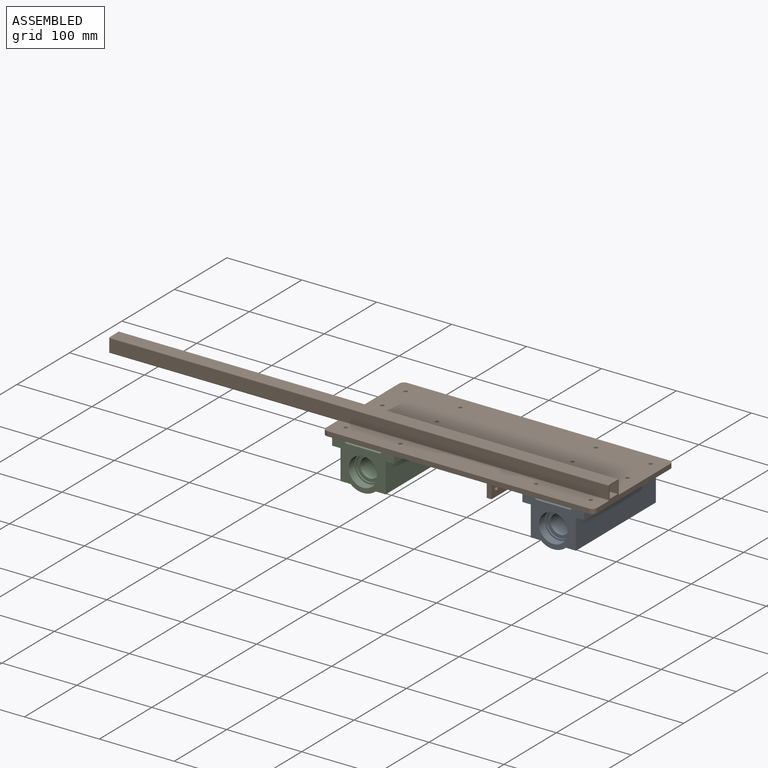
[diagram: assembled view]
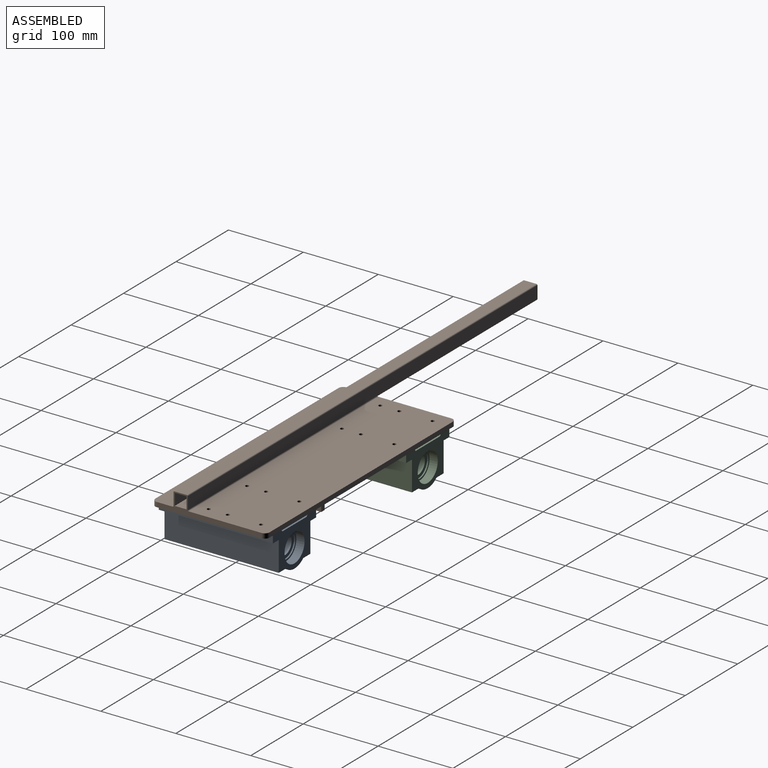
[diagram: assembled view, second angle]
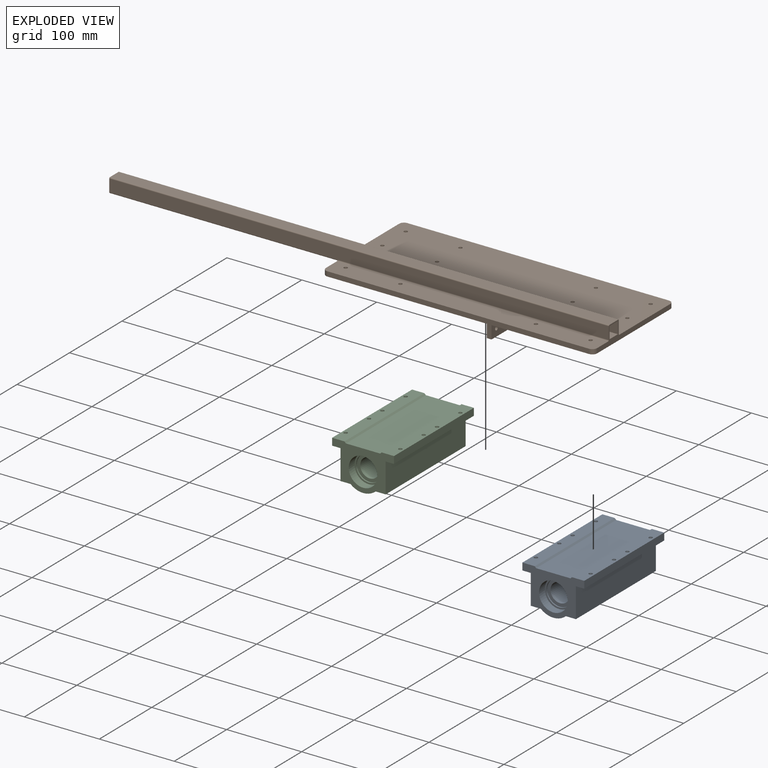
[diagram: exploded view]
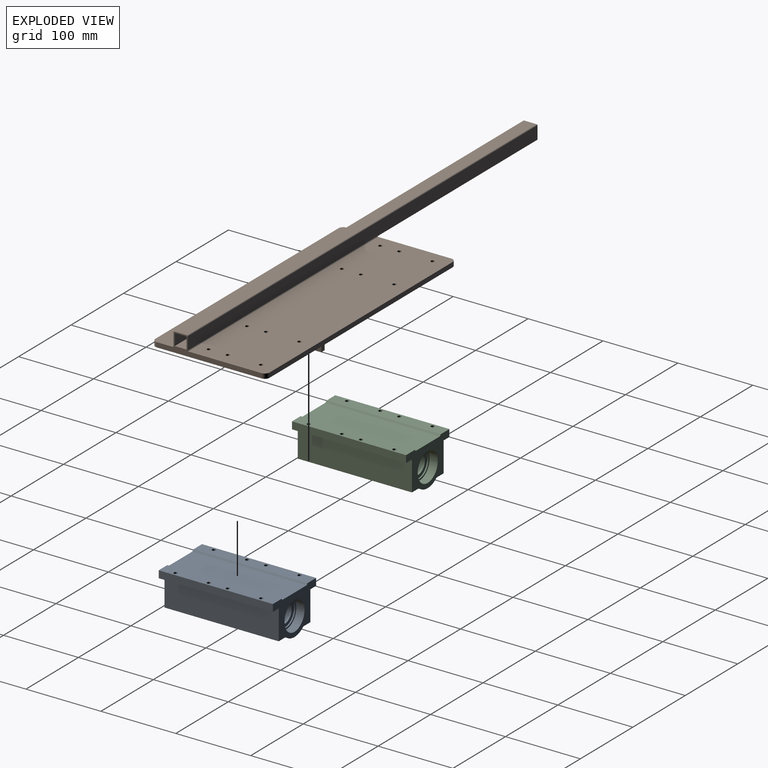
[diagram: exploded view, second angle]
ASSEMBLY  parts=3 mates=2
PART A: 41 faces, bbox 82.6x152.4x55.6 mm
  f0: plane 33.95x33.95mm, normal (0,-1,0), area 398.8mm2, adj f2,f39
  f1: plane 33.95x33.95mm, normal (0,1,0), area 398.8mm2, adj f2,f37
  f2: cylinder r=12.7mm len=57.15mm, axis (0,-1,0), area 4560.4mm2, adj f0,f1
  f3: cylinder r=16.98mm len=33.95mm, axis (0,-1,0), area 184.2mm2, adj f4,f34
  f4: plane 38.2x38.2mm, normal (0,-1,0), area 240.5mm2, adj f3,f12
  f5: cylinder r=16.98mm len=33.95mm, axis (0,-1,0), area 184.2mm2, adj f6,f35
  f6: plane 38.2x38.2mm, normal (0,1,0), area 240.5mm2, adj f5,f29
  f7: cylinder r=19.1mm len=38.2mm, axis (0,1,0), area 1316.8mm2, adj f13,f40
  f8: cylinder r=2.38mm len=9.53mm, axis (0,0,1), area 142.5mm2, adj f16,f18
  f9: cylinder r=2.38mm len=9.53mm, axis (0,0,1), area 142.5mm2, adj f16,f18
  f10: cylinder r=2.38mm len=9.53mm, axis (0,0,1), area 142.5mm2, adj f22,f24
  f11: cylinder r=2.38mm len=9.53mm, axis (0,0,1), area 142.5mm2, adj f22,f24
  f12: cylinder r=19.1mm len=38.2mm, axis (0,1,0), area 1109.5mm2, adj f4,f38
  f13: plane 82.55x55.56mm, normal (0,-1,0), area 2089.9mm2, adj f7,f15,f16,f17,f18,f19,f20,f21
  f14: plane 82.55x55.56mm, normal (0,1,0), area 2089.9mm2, adj f15,f16,f17,f18,f19,f20,f21,f22
  f15: plane 152.4x39.69mm, normal (1,0,0), area 6048.4mm2, adj f13,f14,f16,f28
  f16: plane 152.4x11.11mm, normal (0,0,-1), area 1622.3mm2, adj f8,f9,f13,f14,f15,f17,f31,f32
  f17: plane 152.4x9.53mm, normal (1,0,0), area 1451.6mm2, adj f13,f14,f16,f18
  f18: plane 152.4x16.51mm, normal (0,0,1), area 2444.9mm2, adj f8,f9,f13,f14,f17,f19,f31,f32
  f19: plane 152.4x1.91mm, normal (-0.71,0,0.71), area 410.6mm2, adj f13,f14,f18,f20
  f20: plane 152.4x45.72mm, normal (0,0,1), area 6967.7mm2, adj f13,f14,f19,f21
  f21: plane 152.4x1.91mm, normal (0.71,0,0.71), area 410.6mm2, adj f13,f14,f20,f22
  f22: plane 152.4x16.51mm, normal (0,0,1), area 2444.9mm2, adj f10,f11,f13,f14,f21,f23,f30,f33
  f23: plane 152.4x9.53mm, normal (-1,0,0), area 1451.6mm2, adj f13,f14,f22,f24
  f24: plane 152.4x11.11mm, normal (0,0,-1), area 1622.3mm2, adj f10,f11,f13,f14,f23,f25,f30,f33
  f25: plane 152.4x39.69mm, normal (-1,0,0), area 6048.4mm2, adj f13,f14,f24,f26
  f26: plane 152.4x13.36mm, normal (0,0,-1), area 2036.4mm2, adj f13,f14,f25,f27
  f27: cylinder r=25.4mm len=152.4mm, axis (0,1,0), area 5595.4mm2, adj f13,f14,f26,f28
  f28: plane 152.4x13.36mm, normal (0,0,-1), area 2036.4mm2, adj f13,f14,f15,f27
  f29: cylinder r=19.1mm len=38.2mm, axis (0,1,0), area 1316.8mm2, adj f6,f14
  f30: cylinder r=2.38mm len=9.53mm, axis (0,0,1), area 142.5mm2, adj f22,f24
  f31: cylinder r=2.38mm len=9.53mm, axis (0,0,1), area 142.5mm2, adj f16,f18
  f32: cylinder r=2.38mm len=9.53mm, axis (0,0,1), area 142.5mm2, adj f16,f18
  f33: cylinder r=2.38mm len=9.53mm, axis (0,0,1), area 142.5mm2, adj f22,f24
  f34: plane 33.95x33.95mm, normal (0,-1,0), area 398.8mm2, adj f3,f36
  f35: plane 33.95x33.95mm, normal (0,1,0), area 398.8mm2, adj f5,f36
  f36: cylinder r=12.7mm len=57.15mm, axis (0,1,0), area 4560.4mm2, adj f34,f35
  f37: cylinder r=16.98mm len=33.95mm, axis (0,1,0), area 184.2mm2, adj f1,f38
  f38: plane 38.2x38.2mm, normal (0,1,0), area 240.5mm2, adj f12,f37
  f39: cylinder r=16.98mm len=33.95mm, axis (0,1,0), area 184.2mm2, adj f0,f40
  f40: plane 38.2x38.2mm, normal (0,-1,0), area 240.5mm2, adj f7,f39
PART B: 50 faces, bbox 666.8x152.4x67.3 mm
  f0: plane 139.7x7.62mm, normal (-1,0,0), area 888.5mm2, adj f1,f2,f3,f5,f6,f37,f38,f46
  f1: plane 361.95x103.51mm, normal (0,0,1), area 37232.6mm2, adj f0,f4,f5,f9,f10,f11,f12,f13
  f2: plane 361.95x27.31mm, normal (0,0,1), area 9794.5mm2, adj f0,f6,f7,f8,f9,f16,f17,f21
  f3: plane 361.95x152.4mm, normal (0,0,-1), area 54422.2mm2, adj f0,f4,f5,f6,f7,f8,f9,f10
  f4: plane 349.25x6.35mm, normal (0,1,0), area 2217.7mm2, adj f1,f3,f5,f25
  f5: cylinder r=6.35mm len=6.35mm, axis (0,0,-1), area 63.3mm2, adj f0,f1,f3,f4
  f6: cylinder r=6.35mm len=6.35mm, axis (0,0,-1), area 63.3mm2, adj f0,f2,f3,f7
  f7: plane 349.25x6.35mm, normal (0,-1,0), area 2217.7mm2, adj f2,f3,f6,f8
  f8: cylinder r=6.35mm len=6.35mm, axis (0,0,-1), area 63.3mm2, adj f2,f3,f7,f9
  f9: plane 139.7x25.4mm, normal (1,0,0), area 1002mm2, adj f1,f2,f3,f8,f25,f35,f36,f37
  f10: cylinder r=2.38mm len=6.35mm, axis (0,0,-1), area 95mm2, adj f1,f3
  f11: cylinder r=2.38mm len=6.35mm, axis (0,0,-1), area 95mm2, adj f1,f3
  f12: cylinder r=2.38mm len=6.35mm, axis (0,0,-1), area 95mm2, adj f1,f3
  f13: cylinder r=2.38mm len=6.35mm, axis (0,0,-1), area 95mm2, adj f1,f3
  f14: cylinder r=2.38mm len=6.35mm, axis (0,0,-1), area 95mm2, adj f1,f3
  f15: cylinder r=2.38mm len=6.35mm, axis (0,0,-1), area 95mm2, adj f1,f3
  f16: cylinder r=2.38mm len=6.35mm, axis (0,0,-1), area 95mm2, adj f2,f3
  f17: cylinder r=2.38mm len=6.35mm, axis (0,0,-1), area 95mm2, adj f2,f3
  f18: cylinder r=2.38mm len=6.35mm, axis (0,0,-1), area 95mm2, adj f1,f3
  f19: cylinder r=2.38mm len=6.35mm, axis (0,0,-1), area 95mm2, adj f1,f3
  f20: cylinder r=2.38mm len=6.35mm, axis (0,0,-1), area 95mm2, adj f1,f3
  f21: cylinder r=2.38mm len=6.35mm, axis (0,0,-1), area 95mm2, adj f2,f3
  f22: cylinder r=2.38mm len=6.35mm, axis (0,0,-1), area 95mm2, adj f1,f3
  f23: cylinder r=2.38mm len=6.35mm, axis (0,0,-1), area 95mm2, adj f1,f3
  f24: cylinder r=2.38mm len=6.35mm, axis (0,0,-1), area 95mm2, adj f1,f3
  f25: cylinder r=6.35mm len=6.35mm, axis (0,0,-1), area 63.3mm2, adj f1,f3,f4,f9
  f26: cylinder r=2.38mm len=6.35mm, axis (0,0,-1), area 95mm2, adj f2,f3
  f27: plane 41.91x6.35mm, normal (0,1,0), area 266.1mm2, adj f3,f28,f30,f31
  f28: plane 66.04x41.91mm, normal (-1,0,0), area 2675.3mm2, adj f3,f27,f29,f31,f32,f33,f34
  f29: plane 41.91x6.35mm, normal (0,-1,0), area 266.1mm2, adj f3,f28,f30,f31
  f30: plane 66.04x41.91mm, normal (1,0,0), area 2675.3mm2, adj f3,f27,f29,f31,f32,f33,f34
  f31: plane 66.04x6.35mm, normal (0,0,-1), area 419.4mm2, adj f27,f28,f29,f30
  f32: cylinder r=4.06mm len=8.13mm, axis (1,0,0), area 162.1mm2, adj f28,f30
  f33: cylinder r=2.54mm len=6.35mm, axis (1,0,0), area 101.3mm2, adj f28,f30
  f34: cylinder r=2.54mm len=6.35mm, axis (1,0,0), area 101.3mm2, adj f28,f30
  f35: cylinder r=1.27mm len=666.75mm, axis (-1,0,0), area 1330.1mm2, adj f9,f36,f45,f49
  f36: plane 666.75x16.51mm, normal (0,1,0), area 11008mm2, adj f9,f35,f37,f46,f49
  f37: cylinder r=1.27mm len=361.95mm, axis (-1,0,0), area 722.1mm2, adj f0,f1,f9,f36
  f38: cylinder r=1.27mm len=361.95mm, axis (-1,0,0), area 722.1mm2, adj f0,f2,f9,f39
  f39: plane 666.75x16.51mm, normal (0,-1,0), area 11008mm2, adj f9,f38,f40,f48,f49
  f40: cylinder r=1.27mm len=666.75mm, axis (-1,0,0), area 1330.1mm2, adj f9,f39,f45,f49
  f41: plane 666.75x15.75mm, normal (0,-1,0), area 10500mm2, adj f9,f42,f44,f49
  f42: plane 666.75x15.75mm, normal (0,0,-1), area 10500mm2, adj f9,f41,f43,f49
  f43: plane 666.75x15.75mm, normal (0,1,0), area 10500mm2, adj f9,f42,f44,f49
  f44: plane 666.75x15.75mm, normal (0,0,1), area 10500mm2, adj f9,f41,f43,f49
  f45: plane 666.75x16.51mm, normal (0,0,1), area 11008mm2, adj f9,f35,f40,f49
  f46: cylinder r=1.27mm len=304.8mm, axis (1,0,0), area 608mm2, adj f0,f36,f47,f49
  f47: plane 304.8x16.51mm, normal (0,0,-1), area 5032.2mm2, adj f0,f46,f48,f49
  f48: cylinder r=1.27mm len=304.8mm, axis (1,0,0), area 608mm2, adj f0,f39,f47,f49
  f49: plane 19.05x19.05mm, normal (-1,0,0), area 113.5mm2, adj f35,f36,f39,f40,f41,f42,f43,f44
PART C: 41 faces, bbox 82.6x152.4x55.6 mm
  f0: plane 33.95x33.95mm, normal (0,-1,0), area 398.8mm2, adj f2,f39
  f1: plane 33.95x33.95mm, normal (0,1,0), area 398.8mm2, adj f2,f37
  f2: cylinder r=12.7mm len=57.15mm, axis (0,-1,0), area 4560.4mm2, adj f0,f1
  f3: cylinder r=16.98mm len=33.95mm, axis (0,-1,0), area 184.2mm2, adj f4,f34
  f4: plane 38.2x38.2mm, normal (0,-1,0), area 240.5mm2, adj f3,f12
  f5: cylinder r=16.98mm len=33.95mm, axis (0,-1,0), area 184.2mm2, adj f6,f35
  f6: plane 38.2x38.2mm, normal (0,1,0), area 240.5mm2, adj f5,f29
  f7: cylinder r=19.1mm len=38.2mm, axis (0,1,0), area 1316.8mm2, adj f13,f40
  f8: cylinder r=2.38mm len=9.53mm, axis (0,0,1), area 142.5mm2, adj f16,f18
  f9: cylinder r=2.38mm len=9.53mm, axis (0,0,1), area 142.5mm2, adj f16,f18
  f10: cylinder r=2.38mm len=9.53mm, axis (0,0,1), area 142.5mm2, adj f22,f24
  f11: cylinder r=2.38mm len=9.53mm, axis (0,0,1), area 142.5mm2, adj f22,f24
  f12: cylinder r=19.1mm len=38.2mm, axis (0,1,0), area 1109.5mm2, adj f4,f38
  f13: plane 82.55x55.56mm, normal (0,-1,0), area 2089.9mm2, adj f7,f15,f16,f17,f18,f19,f20,f21
  f14: plane 82.55x55.56mm, normal (0,1,0), area 2089.9mm2, adj f15,f16,f17,f18,f19,f20,f21,f22
  f15: plane 152.4x39.69mm, normal (1,0,0), area 6048.4mm2, adj f13,f14,f16,f28
  f16: plane 152.4x11.11mm, normal (0,0,-1), area 1622.3mm2, adj f8,f9,f13,f14,f15,f17,f31,f32
  f17: plane 152.4x9.53mm, normal (1,0,0), area 1451.6mm2, adj f13,f14,f16,f18
  f18: plane 152.4x16.51mm, normal (0,0,1), area 2444.9mm2, adj f8,f9,f13,f14,f17,f19,f31,f32
  f19: plane 152.4x1.91mm, normal (-0.71,0,0.71), area 410.6mm2, adj f13,f14,f18,f20
  f20: plane 152.4x45.72mm, normal (0,0,1), area 6967.7mm2, adj f13,f14,f19,f21
  f21: plane 152.4x1.91mm, normal (0.71,0,0.71), area 410.6mm2, adj f13,f14,f20,f22
  f22: plane 152.4x16.51mm, normal (0,0,1), area 2444.9mm2, adj f10,f11,f13,f14,f21,f23,f30,f33
  f23: plane 152.4x9.53mm, normal (-1,0,0), area 1451.6mm2, adj f13,f14,f22,f24
  f24: plane 152.4x11.11mm, normal (0,0,-1), area 1622.3mm2, adj f10,f11,f13,f14,f23,f25,f30,f33
  f25: plane 152.4x39.69mm, normal (-1,0,0), area 6048.4mm2, adj f13,f14,f24,f26
  f26: plane 152.4x13.36mm, normal (0,0,-1), area 2036.4mm2, adj f13,f14,f25,f27
  f27: cylinder r=25.4mm len=152.4mm, axis (0,1,0), area 5595.4mm2, adj f13,f14,f26,f28
  f28: plane 152.4x13.36mm, normal (0,0,-1), area 2036.4mm2, adj f13,f14,f15,f27
  f29: cylinder r=19.1mm len=38.2mm, axis (0,1,0), area 1316.8mm2, adj f6,f14
  f30: cylinder r=2.38mm len=9.53mm, axis (0,0,1), area 142.5mm2, adj f22,f24
  f31: cylinder r=2.38mm len=9.53mm, axis (0,0,1), area 142.5mm2, adj f16,f18
  f32: cylinder r=2.38mm len=9.53mm, axis (0,0,1), area 142.5mm2, adj f16,f18
  f33: cylinder r=2.38mm len=9.53mm, axis (0,0,1), area 142.5mm2, adj f22,f24
  f34: plane 33.95x33.95mm, normal (0,-1,0), area 398.8mm2, adj f3,f36
  f35: plane 33.95x33.95mm, normal (0,1,0), area 398.8mm2, adj f5,f36
  f36: cylinder r=12.7mm len=57.15mm, axis (0,1,0), area 4560.4mm2, adj f34,f35
  f37: cylinder r=16.98mm len=33.95mm, axis (0,1,0), area 184.2mm2, adj f1,f38
  f38: plane 38.2x38.2mm, normal (0,1,0), area 240.5mm2, adj f12,f37
  f39: cylinder r=16.98mm len=33.95mm, axis (0,1,0), area 184.2mm2, adj f0,f40
  f40: plane 38.2x38.2mm, normal (0,-1,0), area 240.5mm2, adj f7,f39
PLACE A t=(-114.6,-0.14,21.09)mm
PLACE B t=(-114.6,-0.14,21.09)mm
PLACE C t=(-114.6,-0.14,21.09)mm
MATE fastened C.f10 <-> B.f21  axis (0,0,1) through (-151.11,-57.29,51.25)mm
MATE fastened B.f20 <-> A.f31  axis (0,0,-1) through (175.92,57.01,51.25)mm
